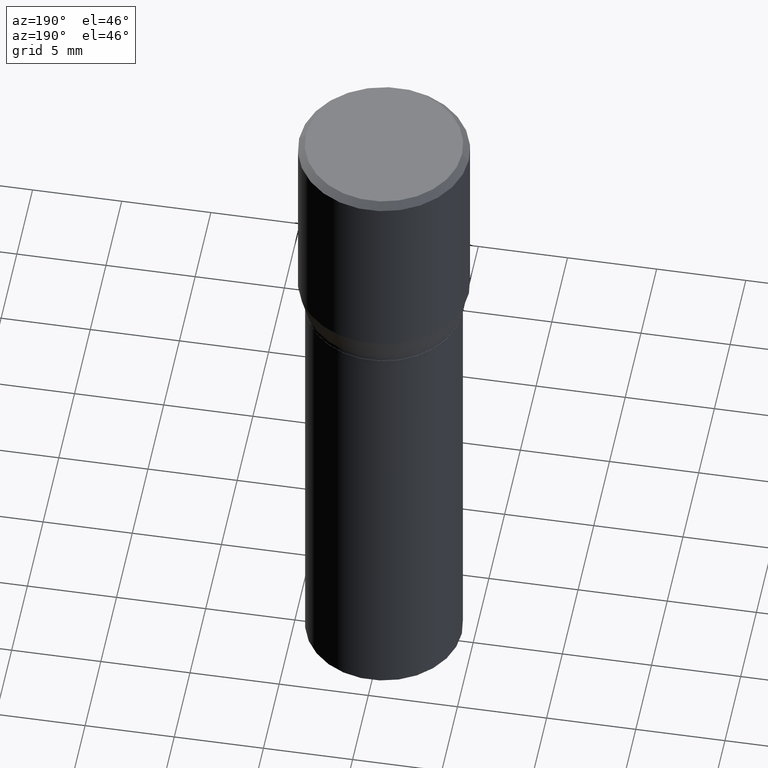
[diagram: clean part render]
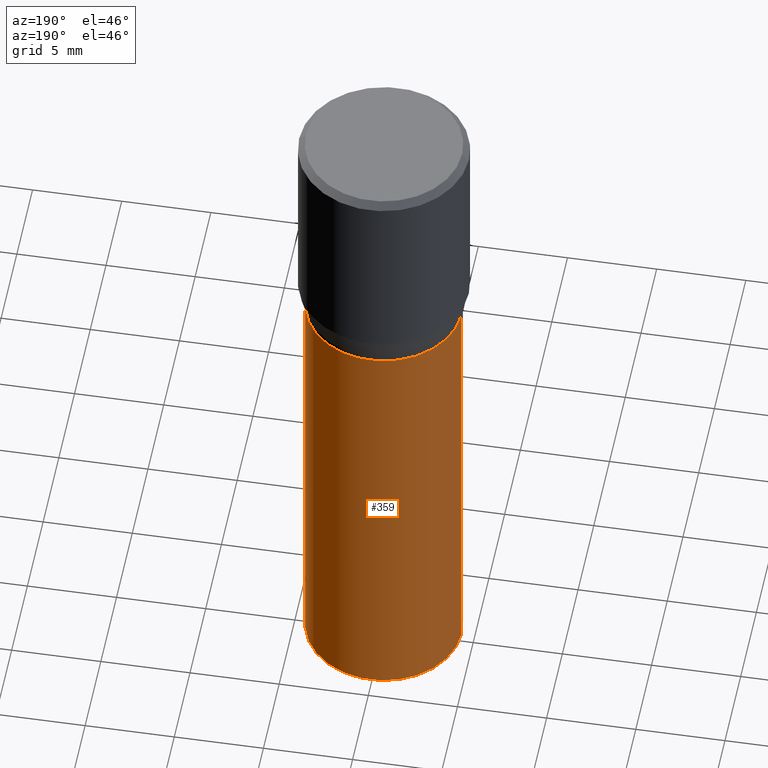
[diagram: same view with one face highlighted and labeled with its STEP entity id]
A machine part, auxiliary view. The second image highlights one B-rep face of the part: STEP entity #359.
In plain terms, the highlighted cylindrical surface (partial cylindrical patch) has radius 4.3663 mm, axis along (-0, 0, 1).
Its self-contained STEP definition (entity closure, byte-faithful):
#2 = CIRCLE ( 'NONE', #375, 0.1718999999999999695 ) ;
#7 = CIRCLE ( 'NONE', #262, 0.1718999999999999695 ) ;
#18 = DIRECTION ( 'NONE',  ( 1.000000000000000000, -6.982962677686266711E-15, 4.876176775795936353E-29 ) ) ;
#20 = CARTESIAN_POINT ( 'NONE',  ( -0.1718999999999999695, 1.221422962771612003E-15, -8.455649420148183180E-30 ) ) ;
#29 = CARTESIAN_POINT ( 'NONE',  ( 1.222734403092568719E-29, -1.745740669421573186E-15, -0.5000000000000001110 ) ) ;
#32 = AXIS2_PLACEMENT_3D ( 'NONE', #146, #194, #18 ) ;
#46 = CARTESIAN_POINT ( 'NONE',  ( 0.1718999999999999695, -1.200371284294269044E-15, 8.382147877593213079E-30 ) ) ;
#65 = DIRECTION ( 'NONE',  ( 1.000000000000000000, -6.982962677686266711E-15, 0.000000000000000000 ) ) ;
#70 = ORIENTED_EDGE ( 'NONE', *, *, #283, .F. ) ;
#73 = ORIENTED_EDGE ( 'NONE', *, *, #159, .F. ) ;
#77 = CARTESIAN_POINT ( 'NONE',  ( 0.1718999999999999695, -2.946111953715842230E-15, -0.5000000000000001110 ) ) ;
#90 = VECTOR ( 'NONE', #158, 39.37007874015748143 ) ;
#122 = VERTEX_POINT ( 'NONE', #418 ) ;
#134 = CARTESIAN_POINT ( 'NONE',  ( 3.668203209277704895E-29, -5.237222008264718177E-15, -1.500000000000000222 ) ) ;
#146 = CARTESIAN_POINT ( 'NONE',  ( 0.000000000000000000, 0.000000000000000000, 0.000000000000000000 ) ) ;
#155 = DIRECTION ( 'NONE',  ( -2.445468806185136597E-29, 3.491481338843145583E-15, 1.000000000000000000 ) ) ;
#157 = ORIENTED_EDGE ( 'NONE', *, *, #221, .T. ) ;
#158 = DIRECTION ( 'NONE',  ( -2.445468806185136877E-29, 3.491481338843145188E-15, 1.000000000000000000 ) ) ;
#159 = EDGE_CURVE ( 'NONE', #224, #178, #7, .T. ) ;
#162 = VECTOR ( 'NONE', #256, 39.37007874015748143 ) ;
#178 = VERTEX_POINT ( 'NONE', #201 ) ;
#190 = VERTEX_POINT ( 'NONE', #438 ) ;
#194 = DIRECTION ( 'NONE',  ( -2.445468806185136597E-29, 3.491481338843145583E-15, 1.000000000000000000 ) ) ;
#201 = CARTESIAN_POINT ( 'NONE',  ( -0.1718999999999999695, -2.270058376071533777E-15, -0.5000000000000001110 ) ) ;
#213 = LINE ( 'NONE', #46, #162 ) ;
#221 = EDGE_CURVE ( 'NONE', #122, #190, #2, .T. ) ;
#224 = VERTEX_POINT ( 'NONE', #77 ) ;
#256 = DIRECTION ( 'NONE',  ( -2.445468806185136877E-29, 3.491481338843145188E-15, 1.000000000000000000 ) ) ;
#262 = AXIS2_PLACEMENT_3D ( 'NONE', #29, #155, #65 ) ;
#283 = EDGE_CURVE ( 'NONE', #122, #224, #213, .T. ) ;
#292 = EDGE_LOOP ( 'NONE', ( #157, #314, #73, #70 ) ) ;
#314 = ORIENTED_EDGE ( 'NONE', *, *, #452, .T. ) ;
#320 = FACE_OUTER_BOUND ( 'NONE', #292, .T. ) ;
#322 = LINE ( 'NONE', #20, #90 ) ;
#357 = DIRECTION ( 'NONE',  ( -2.445468806185136597E-29, 3.491481338843145583E-15, 1.000000000000000000 ) ) ;
#359 = ADVANCED_FACE ( 'NONE', ( #320 ), #409, .T. ) ;
#375 = AXIS2_PLACEMENT_3D ( 'NONE', #134, #357, #431 ) ;
#409 = CYLINDRICAL_SURFACE ( 'NONE', #32, 0.1718999999999999695 ) ;
#418 = CARTESIAN_POINT ( 'NONE',  ( 0.1718999999999999695, -6.437593292558987418E-15, -1.500000000000000222 ) ) ;
#431 = DIRECTION ( 'NONE',  ( 1.000000000000000000, -6.982962677686268288E-15, 0.000000000000000000 ) ) ;
#438 = CARTESIAN_POINT ( 'NONE',  ( -0.1718999999999999695, -2.270058376071533777E-15, -1.500000000000000222 ) ) ;
#452 = EDGE_CURVE ( 'NONE', #190, #178, #322, .T. ) ;